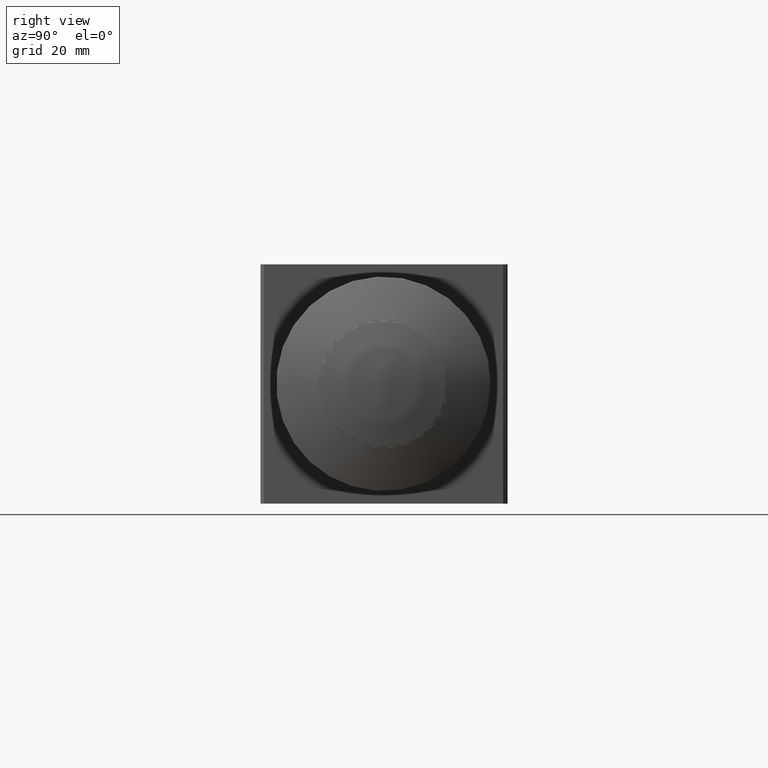
[diagram: clean part render]
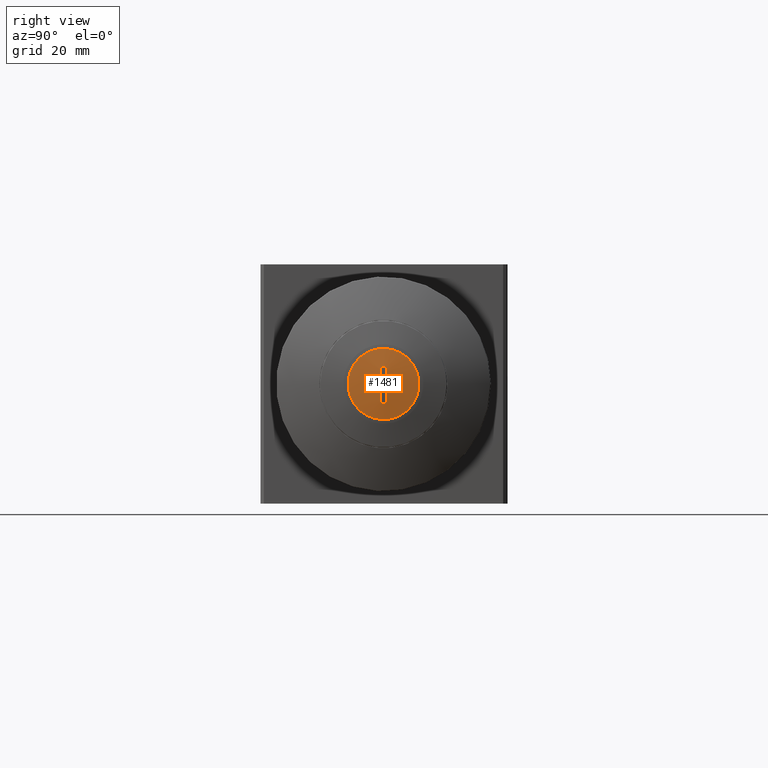
[diagram: same view with one face highlighted and labeled with its STEP entity id]
A machine part, right view. The second image highlights one B-rep face of the part: STEP entity #1481.
In plain terms, the highlighted spherical surface has radius 43.6385 mm.
Its self-contained STEP definition (entity closure, byte-faithful):
#182=CARTESIAN_POINT('',(45.432543322636079,-2.200871066395350,6.700000000000000));
#183=VERTEX_POINT('',#182);
#184=CARTESIAN_POINT('',(45.432543322636079,-2.200871066395350,0.0));
#185=DIRECTION('',(1.0,0.0,0.0));
#186=DIRECTION('',(0.0,0.0,-1.0));
#187=AXIS2_PLACEMENT_3D('',#184,#185,#186);
#188=CIRCLE('',#187,6.700000000000000);
#189=EDGE_CURVE('',#183,#183,#188,.T.);
#248=CARTESIAN_POINT('',(45.832916565617538,-2.850871066395349,-3.127000000000000));
#249=VERTEX_POINT('',#248);
#256=CARTESIAN_POINT('',(45.832916565617538,-1.550871066395349,-3.127000000000000));
#257=VERTEX_POINT('',#256);
#258=CARTESIAN_POINT('',(45.832916565617545,-1.550871066395348,-3.127000000000000));
#259=CARTESIAN_POINT('',(45.824159732085029,-1.550871066395348,-3.248877303729740));
#260=CARTESIAN_POINT('',(45.814591313675315,-1.589448016690575,-3.382005867032893));
#261=CARTESIAN_POINT('',(45.806946238447985,-1.660566635772507,-3.488346263643789));
#262=CARTESIAN_POINT('',(45.800930460591736,-1.716528650679909,-3.572023687885424));
#263=CARTESIAN_POINT('',(45.796123722038331,-1.787594436503178,-3.638867194110669));
#264=CARTESIAN_POINT('',(45.792468916723983,-1.875474506586746,-3.689687372227889));
#265=CARTESIAN_POINT('',(45.788379001301330,-1.973816832118456,-3.746557769523096));
#266=CARTESIAN_POINT('',(45.786223493548270,-2.090276084313456,-3.776523933159417));
#267=CARTESIAN_POINT('',(45.786189696042285,-2.198036786864694,-3.776993820631814));
#268=CARTESIAN_POINT('',(45.786165019444155,-2.276716188608171,-3.777336899920827));
#269=CARTESIAN_POINT('',(45.787218823101888,-2.360105250948604,-3.762686438801916));
#270=CARTESIAN_POINT('',(45.789404361522955,-2.437754162368575,-3.732298603039971));
#271=CARTESIAN_POINT('',(45.791731086476197,-2.520419220118985,-3.699947702657288));
#272=CARTESIAN_POINT('',(45.795347054617899,-2.596268584796587,-3.649668300401797));
#273=CARTESIAN_POINT('',(45.799566614813934,-2.656082393985471,-3.590985611020039));
#274=CARTESIAN_POINT('',(45.803782866472240,-2.715849303441922,-3.532348934464880));
#275=CARTESIAN_POINT('',(45.809109513571158,-2.767094307993333,-3.458260618383585));
#276=CARTESIAN_POINT('',(45.814987370967188,-2.801084764511876,-3.376486505834049));
#277=CARTESIAN_POINT('',(45.820759243678140,-2.834462333104276,-3.296186876753879));
#278=CARTESIAN_POINT('',(45.827035561612654,-2.850871066395349,-3.208851608652573));
#279=CARTESIAN_POINT('',(45.832916565617538,-2.850871066395349,-3.127000000000000));
#280=B_SPLINE_CURVE_WITH_KNOTS('',3,(#258,#259,#260,#261,#262,#263,#264,#265,#266,#267,#268,#269,#270,#271,#272,#273,#274,#275,#276,#277,#278,#279),.UNSPECIFIED.,.F.,.U.,(4,3,3,3,3,3,3,4),(-0.196129872034867,-0.159472426177099,-0.130627314193184,-0.098348147938271,-0.074780136320055,-0.049689623061667,-0.024618783159221,0.0),.UNSPECIFIED.);
#281=EDGE_CURVE('',#257,#249,#280,.T.);
#306=CARTESIAN_POINT('',(45.865604264934312,-2.850871066395349,2.632836229129589));
#307=VERTEX_POINT('',#306);
#314=CARTESIAN_POINT('',(2.311439613035351,-2.850871066395349,7.830572E-017));
#315=DIRECTION('',(0.0,-1.0,0.0));
#316=DIRECTION('',(0.0,0.0,1.0));
#317=AXIS2_PLACEMENT_3D('',#314,#315,#316);
#318=CIRCLE('',#317,43.633669168821250);
#319=EDGE_CURVE('',#249,#307,#318,.T.);
#340=CARTESIAN_POINT('',(45.865604264934312,-1.550871066395349,2.632836229129589));
#341=VERTEX_POINT('',#340);
#342=CARTESIAN_POINT('',(2.311439613035351,-1.550871066395349,-1.566114E-017));
#343=DIRECTION('',(0.0,1.0,0.0));
#344=DIRECTION('',(0.0,0.0,-1.0));
#345=AXIS2_PLACEMENT_3D('',#342,#343,#344);
#346=CIRCLE('',#345,43.633669168821250);
#347=EDGE_CURVE('',#341,#257,#346,.T.);
#389=CARTESIAN_POINT('',(45.865604264934319,-2.850871066395349,2.632836229129590));
#390=CARTESIAN_POINT('',(45.858237198717205,-2.850871066395349,2.754707240881712));
#391=CARTESIAN_POINT('',(45.850188446434323,-2.812296743263082,2.887817886871703));
#392=CARTESIAN_POINT('',(45.843758391329423,-2.741207342345012,2.994134871381191));
#393=CARTESIAN_POINT('',(45.838696084807154,-2.685239495715280,3.077836978957261));
#394=CARTESIAN_POINT('',(45.834652297886578,-2.614168767711959,3.144684542474736));
#395=CARTESIAN_POINT('',(45.831577813058878,-2.526299748946676,3.195505023868473));
#396=CARTESIAN_POINT('',(45.828130530025653,-2.427776128076252,3.252487768317501));
#397=CARTESIAN_POINT('',(45.826317552902985,-2.311080901302085,3.282450581483412));
#398=CARTESIAN_POINT('',(45.826294465431744,-2.203169507612812,3.282832165399940));
#399=CARTESIAN_POINT('',(45.826277676367297,-2.124697018167411,3.283109650833485));
#400=CARTESIAN_POINT('',(45.827164286306193,-2.041469815929403,3.268456480137068));
#401=CARTESIAN_POINT('',(45.828998633269585,-1.963993435635554,3.238136970947759));
#402=CARTESIAN_POINT('',(45.830954371405753,-1.881389918080365,3.205811014313171));
#403=CARTESIAN_POINT('',(45.833993118317260,-1.805582351959974,3.155581901348910));
#404=CARTESIAN_POINT('',(45.837540551344183,-1.745775789679510,3.096935667947322));
#405=CARTESIAN_POINT('',(45.841090304327864,-1.685930114993676,3.038251080974374));
#406=CARTESIAN_POINT('',(45.845575275519288,-1.634631930942328,2.964097843480961));
#407=CARTESIAN_POINT('',(45.850526436854402,-1.600614976796040,2.882220725237401));
#408=CARTESIAN_POINT('',(45.855380139196491,-1.567267614665173,2.801955281701276));
#409=CARTESIAN_POINT('',(45.860658172350519,-1.550871066395349,2.714657851148722));
#410=CARTESIAN_POINT('',(45.865604264934312,-1.550871066395349,2.632836229129589));
#411=B_SPLINE_CURVE_WITH_KNOTS('',3,(#389,#390,#391,#392,#393,#394,#395,#396,#397,#398,#399,#400,#401,#402,#403,#404,#405,#406,#407,#408,#409,#410),.UNSPECIFIED.,.F.,.U.,(4,3,3,3,3,3,3,4),(-0.196056042392236,-0.159427999237954,-0.130591173000401,-0.098257722880465,-0.074745040516487,-0.049676364578659,-0.024591294182129,0.0),.UNSPECIFIED.);
#412=EDGE_CURVE('',#307,#341,#411,.T.);
#1467=CARTESIAN_POINT('',(2.311439613035351,-2.200871066395349,0.0));
#1468=DIRECTION('',(0.0,0.0,1.0));
#1469=DIRECTION('',(1.0,0.0,0.0));
#1470=AXIS2_PLACEMENT_3D('',#1467,#1468,#1469);
#1471=SPHERICAL_SURFACE('',#1470,43.638510345039762);
#1472=ORIENTED_EDGE('',*,*,#189,.T.);
#1473=EDGE_LOOP('',(#1472));
#1474=FACE_OUTER_BOUND('',#1473,.T.);
#1475=ORIENTED_EDGE('',*,*,#281,.T.);
#1476=ORIENTED_EDGE('',*,*,#319,.T.);
#1477=ORIENTED_EDGE('',*,*,#412,.T.);
#1478=ORIENTED_EDGE('',*,*,#347,.T.);
#1479=EDGE_LOOP('',(#1475,#1476,#1477,#1478));
#1480=FACE_BOUND('',#1479,.T.);
#1481=ADVANCED_FACE('',(#1474,#1480),#1471,.T.);